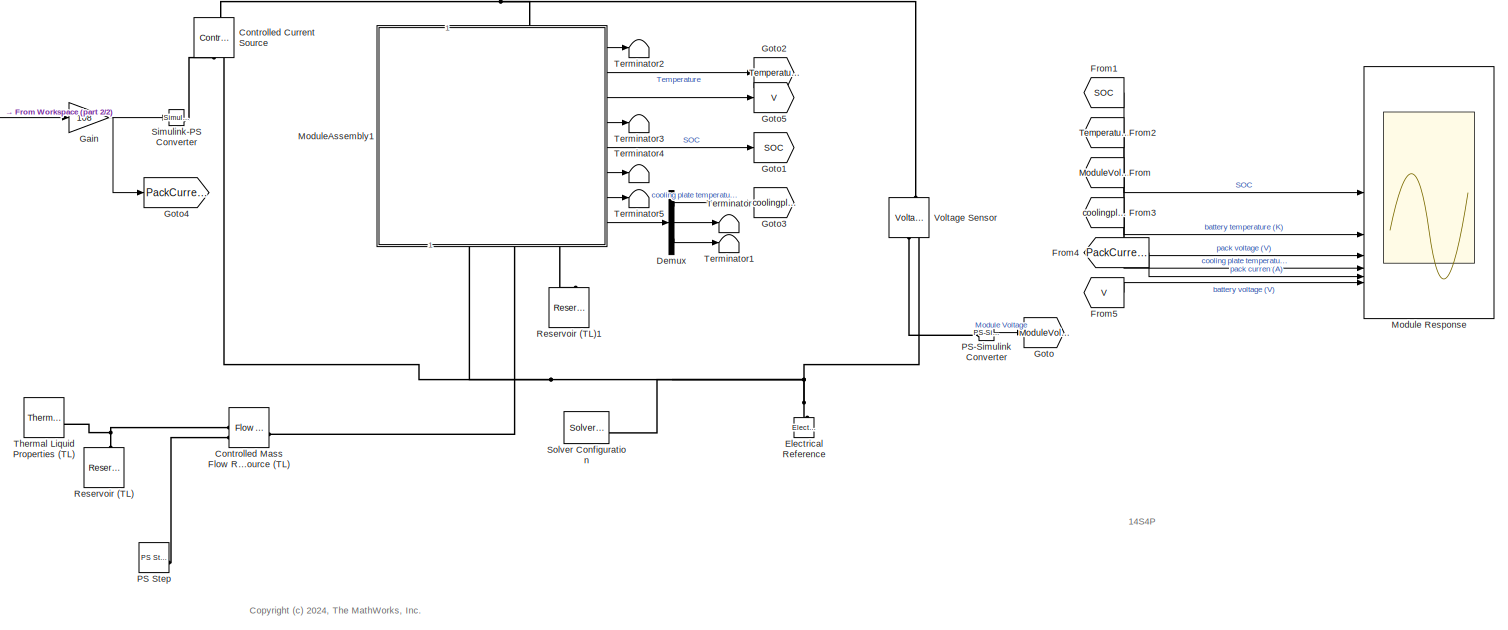
[diagram: root canvas - part 1/2, most of the canvas]
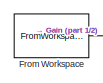
[diagram: root canvas - part 2/2, top left region]
MODEL slx_20feb65389b3
KIND model
CONFIG AbsTol = auto
CONFIG EnableMultiTasking = off
CONFIG FixedStep = auto
CONFIG MaxStep = auto
CONFIG MinStep = auto
CONFIG PostLoadFcn = pouchPackExample_param;\nload Artemis150mphCurrent_TS.mat;
CONFIG RelTol = 1e-3
CONFIG SampleTimeConstraint = Unconstrained
CONFIG SolverName = VariableStepAuto
CONFIG StartTime = 0.0
CONFIG StopTime = 800
BLOCK [Reference] Controlled Current Source  REF=fl_lib/Electrical/Electrical Sources/Controlled Current
Source
  NameLocation = right
  SourceBlock = fl_lib/Electrical/Electrical Sources/Controlled Current\nSource
  SourceType = Controlled Current\nSource
BLOCK [Reference] Controlled Mass Flow Rate Source (TL)  REF=fl_lib/Thermal Liquid/Sources/Flow Rate Source
(TL)
  SourceBlock = fl_lib/Thermal Liquid/Sources/Flow Rate Source\n(TL)
  SourceType = Flow Rate Source\n(TL)
BLOCK [Demux] Demux
  Outputs = [10 1 1]
BLOCK [Reference] Electrical Reference  REF=fl_lib/Electrical/Electrical Elements/Electrical Reference
  NameLocation = right
  SourceBlock = fl_lib/Electrical/Electrical Elements/Electrical Reference
  SourceType = Electrical Reference
BLOCK [From] From
  GotoTag = ModuleVoltage
BLOCK [FromWorkspace] From Workspace
  OutputAfterFinalValue = Setting to zero
  VariableName = battpackcurrent
BLOCK [From] From1
  GotoTag = SOC
BLOCK [From] From2
  GotoTag = Temperature
BLOCK [From] From3
  GotoTag = coolingplatetemperature
BLOCK [From] From4
  GotoTag = PackCurrent
BLOCK [From] From5
  GotoTag = V
BLOCK [Gain] Gain
  Gain = 108
BLOCK [Goto] Goto
  GotoTag = ModuleVoltage
BLOCK [Goto] Goto1
  GotoTag = SOC
BLOCK [Goto] Goto2
  GotoTag = Temperature
BLOCK [Goto] Goto3
  GotoTag = coolingplatetemperature
BLOCK [Goto] Goto4
  GotoTag = PackCurrent
BLOCK [Goto] Goto5
  GotoTag = V
BLOCK [Scope] Module Response
  Floating = off
  NumInputPorts = 6
  ScopeSpecificationString = Simulink.scopes.TimeScopeBlockCfg('CurrentConfiguration', extmgr.ConfigurationSet(extmgr.Configuration('Core','General UI',true),extmgr.Configuration('Core','Source UI',true),extmgr.Configuration('Sources','WiredSimulink',true),extmgr.Configuration('Visuals','Time Domain',true,'SerializedDisplays',{struct('MinYLimReal','0.89071','MaxYLimReal','1.01214','YLabelReal','','MinYLimMag','0.89071','MaxYL...<+5937ch>
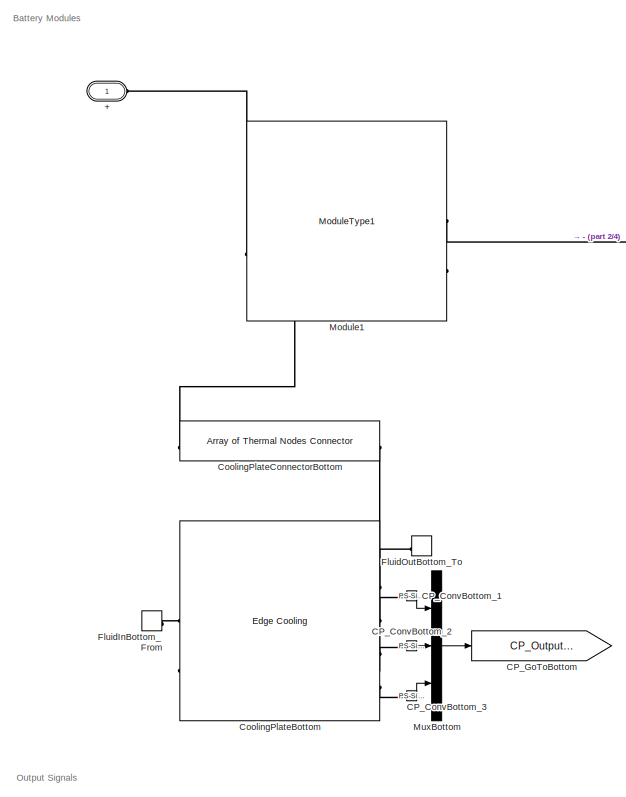
[diagram: ModuleAssembly1 - part 1/4, top left region]
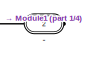
[diagram: ModuleAssembly1 - part 2/4, top right region]
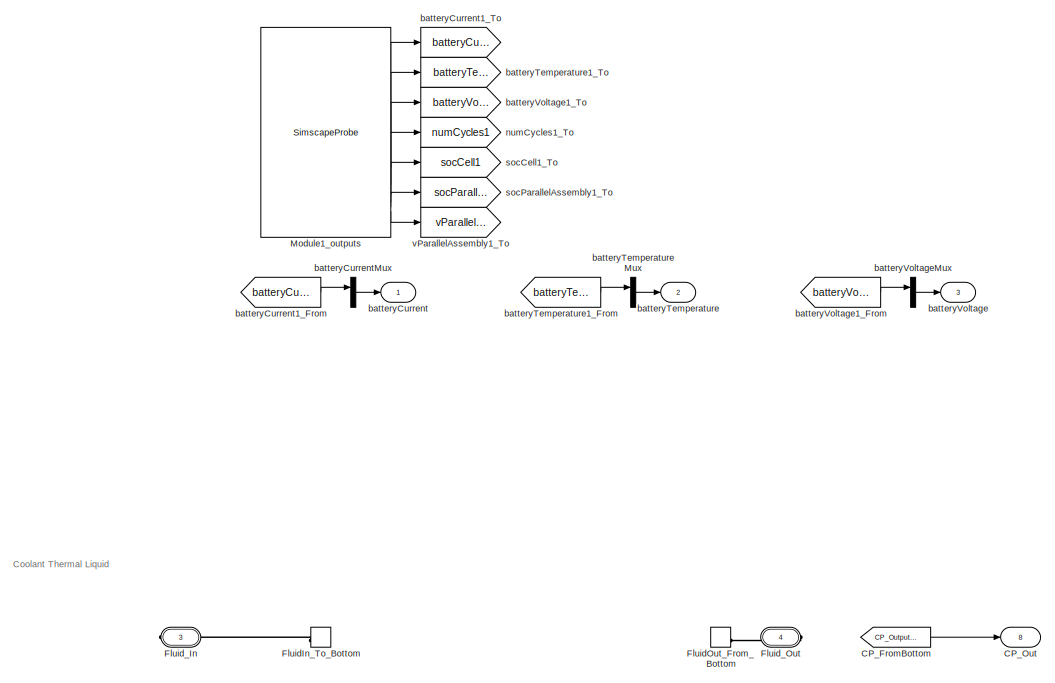
[diagram: ModuleAssembly1 - part 3/4, bottom left region]
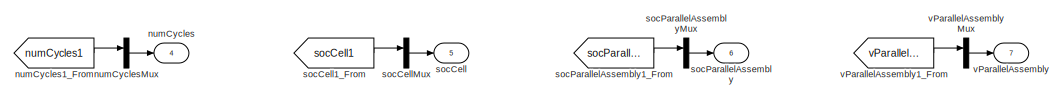
[diagram: ModuleAssembly1 - part 4/4, bottom center region]
BLOCK [SubSystem] ModuleAssembly1
  CopyFcn = battery_builder_rtmsupport('copyfcn',gcbh);
  LoadFcn = battery_builder_rtmsupport('loadfcn',gcbh);
  PortSchema = {"entries":[{"content":{"sides":[{"content":{"connectorIds":["LConn1"]},"type":"ConnectorPlacement.EquallySpacedRectSide","uuid":"a5a584e8-f613-435c-beac-db0de62ed6e0"},{"content":{"connectorIds":["RConn1","RConn2","RConn3"],"side":"RIGHT"},"type":"ConnectorPlacement.EquallySpacedRectSide","uuid":"d51acd9b-f0fc-42a2-9d6d-d5cd10e7587e"},{"content":{"side":"TOP"},"type":"ConnectorPlacement.EquallySp...<+444ch>
  PreCopyFcn = battery_builder_rtmsupport('precopyfcn',gcbh);
  PreDeleteFcn = battery_builder_rtmsupport('predeletefcn',gcbh);
BLOCK [PMIOPort] ModuleAssembly1/+
  Side = Left
BLOCK [PMIOPort] ModuleAssembly1/-
  Port = 2
  Side = Right
BLOCK [Reference] ModuleAssembly1/CP_ConvBottom_1  REF=nesl_utility/PS-Simulink
Converter
  SourceBlock = nesl_utility/PS-Simulink\nConverter
  SourceType = PS-Simulink\nConverter
BLOCK [Reference] ModuleAssembly1/CP_ConvBottom_2  REF=nesl_utility/PS-Simulink
Converter
  SourceBlock = nesl_utility/PS-Simulink\nConverter
  SourceType = PS-Simulink\nConverter
BLOCK [Reference] ModuleAssembly1/CP_ConvBottom_3  REF=nesl_utility/PS-Simulink
Converter
  SourceBlock = nesl_utility/PS-Simulink\nConverter
  SourceType = PS-Simulink\nConverter
BLOCK [From] ModuleAssembly1/CP_FromBottom
  GotoTag = CP_OutputsBottom
BLOCK [Goto] ModuleAssembly1/CP_GoToBottom
  GotoTag = CP_OutputsBottom
BLOCK [Outport] ModuleAssembly1/CP_Out
  Port = 8
BLOCK [Reference] ModuleAssembly1/CoolingPlateBottom  REF=batt_lib/Thermal/Edge Cooling
  SourceBlock = batt_lib/Thermal/Edge Cooling
  SourceType = Edge Cooling
BLOCK [Reference] ModuleAssembly1/CoolingPlateConnectorBottom  REF=batt_lib/Thermal/Array of Thermal
Nodes Connector
  SourceBlock = batt_lib/Thermal/Array of Thermal\nNodes Connector
  SourceType = Array of Thermal\nNodes Connector
BLOCK [ConnectionLabel] ModuleAssembly1/FluidInBottom_From
  Label = FluidIn_To_Bottom
BLOCK [ConnectionLabel] ModuleAssembly1/FluidIn_To_Bottom
  Label = FluidIn_To_Bottom
BLOCK [ConnectionLabel] ModuleAssembly1/FluidOutBottom_To
  Label = FluidOut_From_Bottom
BLOCK [ConnectionLabel] ModuleAssembly1/FluidOut_From_Bottom
  Label = FluidOut_From_Bottom
BLOCK [PMIOPort] ModuleAssembly1/Fluid_In
  ConnectionType = Connection: foundation.thermal_liquid.thermal_liquid
  Port = 3
  Side = Right
BLOCK [PMIOPort] ModuleAssembly1/Fluid_Out
  ConnectionType = Connection: foundation.thermal_liquid.thermal_liquid
  Port = 4
  Side = Right
BLOCK [Reference] ModuleAssembly1/Module1  REF=pouchPackExample_lib/Modules/ModuleType1
  SourceBlock = pouchPackExample_lib/Modules/ModuleType1
  SourceType = ModuleType1
BLOCK [SimscapeProbe] ModuleAssembly1/Module1_outputs
  BoundBlock = 471
  Variables = {batteryCurrent, batteryTemperature, batteryVoltage, numCycles, socCell, socParallelAssembly, vParallelAssembly}
BLOCK [Mux] ModuleAssembly1/MuxBottom
  DisplayOption = bar
  Inputs = 3
BLOCK [Outport] ModuleAssembly1/batteryCurrent
BLOCK [From] ModuleAssembly1/batteryCurrent1_From
  GotoTag = batteryCurrent1
BLOCK [Goto] ModuleAssembly1/batteryCurrent1_To
  GotoTag = batteryCurrent1
BLOCK [Mux] ModuleAssembly1/batteryCurrentMux
  DisplayOption = bar
  Inputs = 1
BLOCK [Outport] ModuleAssembly1/batteryTemperature
  Port = 2
BLOCK [From] ModuleAssembly1/batteryTemperature1_From
  GotoTag = batteryTemperature1
BLOCK [Goto] ModuleAssembly1/batteryTemperature1_To
  GotoTag = batteryTemperature1
BLOCK [Mux] ModuleAssembly1/batteryTemperatureMux
  DisplayOption = bar
  Inputs = 1
BLOCK [Outport] ModuleAssembly1/batteryVoltage
  Port = 3
BLOCK [From] ModuleAssembly1/batteryVoltage1_From
  GotoTag = batteryVoltage1
BLOCK [Goto] ModuleAssembly1/batteryVoltage1_To
  GotoTag = batteryVoltage1
BLOCK [Mux] ModuleAssembly1/batteryVoltageMux
  DisplayOption = bar
  Inputs = 1
BLOCK [Outport] ModuleAssembly1/numCycles
  Port = 4
BLOCK [From] ModuleAssembly1/numCycles1_From
  GotoTag = numCycles1
BLOCK [Goto] ModuleAssembly1/numCycles1_To
  GotoTag = numCycles1
BLOCK [Mux] ModuleAssembly1/numCyclesMux
  DisplayOption = bar
  Inputs = 1
BLOCK [Outport] ModuleAssembly1/socCell
  Port = 5
BLOCK [From] ModuleAssembly1/socCell1_From
  GotoTag = socCell1
BLOCK [Goto] ModuleAssembly1/socCell1_To
  GotoTag = socCell1
BLOCK [Mux] ModuleAssembly1/socCellMux
  DisplayOption = bar
  Inputs = 1
BLOCK [Outport] ModuleAssembly1/socParallelAssembly
  Port = 6
BLOCK [From] ModuleAssembly1/socParallelAssembly1_From
  GotoTag = socParallelAssembly1
BLOCK [Goto] ModuleAssembly1/socParallelAssembly1_To
  GotoTag = socParallelAssembly1
BLOCK [Mux] ModuleAssembly1/socParallelAssemblyMux
  DisplayOption = bar
  Inputs = 1
BLOCK [Outport] ModuleAssembly1/vParallelAssembly
  Port = 7
BLOCK [From] ModuleAssembly1/vParallelAssembly1_From
  GotoTag = vParallelAssembly1
BLOCK [Goto] ModuleAssembly1/vParallelAssembly1_To
  GotoTag = vParallelAssembly1
BLOCK [Mux] ModuleAssembly1/vParallelAssemblyMux
  DisplayOption = bar
  Inputs = 1
BLOCK [Reference] PS Step  REF=fl_lib/Physical Signals/Sources/PS Step
  SourceBlock = fl_lib/Physical Signals/Sources/PS Step
  SourceType = PS Step
BLOCK [Reference] PS-Simulink Converter  REF=nesl_utility/PS-Simulink
Converter
  SourceBlock = nesl_utility/PS-Simulink\nConverter
  SourceType = PS-Simulink\nConverter
BLOCK [Reference] Reservoir (TL)  REF=fl_lib/Thermal Liquid/Elements/Reservoir (TL)
  NameLocation = right
  SourceBlock = fl_lib/Thermal Liquid/Elements/Reservoir (TL)
  SourceType = Reservoir (TL)
BLOCK [Reference] Reservoir (TL)1  REF=fl_lib/Thermal Liquid/Elements/Reservoir (TL)
  NameLocation = right
  SourceBlock = fl_lib/Thermal Liquid/Elements/Reservoir (TL)
  SourceType = Reservoir (TL)
BLOCK [Reference] Simulink-PS Converter  REF=nesl_utility/Simulink-PS
Converter
  SourceBlock = nesl_utility/Simulink-PS\nConverter
  SourceType = Simulink-PS\nConverter
BLOCK [Reference] Solver Configuration  REF=nesl_utility/Solver
Configuration
  SourceBlock = nesl_utility/Solver\nConfiguration
  SourceType = Solver\nConfiguration
BLOCK [Terminator] Terminator
BLOCK [Terminator] Terminator1
BLOCK [Terminator] Terminator2
BLOCK [Terminator] Terminator3
BLOCK [Terminator] Terminator4
BLOCK [Terminator] Terminator5
BLOCK [Reference] Thermal Liquid Properties (TL)  REF=SimscapeFluids_lib/Thermal Liquid/Utilities/Thermal Liquid
Properties (TL)
  SourceBlock = SimscapeFluids_lib/Thermal Liquid/Utilities/Thermal Liquid\nProperties (TL)
  SourceType = Thermal Liquid\nProperties (TL)
BLOCK [Reference] Voltage Sensor  REF=fl_lib/Electrical/Electrical Sensors/Voltage Sensor
  NameLocation = right
  SourceBlock = fl_lib/Electrical/Electrical Sensors/Voltage Sensor
  SourceType = Voltage Sensor
ANNOTATION (root): <copyright redacted>
ANNOTATION (root): 14S4P
ANNOTATION ModuleAssembly1: Battery Modules
ANNOTATION ModuleAssembly1: Coolant Thermal Liquid
ANNOTATION ModuleAssembly1: Output Signals
LINE Demux:1 -> Goto3:1
LINE Demux:2 -> Terminator:1
LINE Demux:3 -> Terminator1:1
LINE From Workspace:1 -> Gain:1
LINE From1:1 -> Module Response:1
LINE From2:1 -> Module Response:2
LINE From3:1 -> Module Response:4
LINE From4:1 -> Module Response:5
LINE From5:1 -> Module Response:6
LINE From:1 -> Module Response:3
NET Gain:1 -> Goto4:1, Simulink-PS Converter:1
LINE ModuleAssembly1/CP_ConvBottom_1:1 -> ModuleAssembly1/MuxBottom:1
LINE ModuleAssembly1/CP_ConvBottom_2:1 -> ModuleAssembly1/MuxBottom:2
LINE ModuleAssembly1/CP_ConvBottom_3:1 -> ModuleAssembly1/MuxBottom:3
LINE ModuleAssembly1/CP_FromBottom:1 -> ModuleAssembly1/CP_Out:1
LINE ModuleAssembly1/Module1_outputs:1 -> ModuleAssembly1/batteryCurrent1_To:1
LINE ModuleAssembly1/Module1_outputs:2 -> ModuleAssembly1/batteryTemperature1_To:1
LINE ModuleAssembly1/Module1_outputs:3 -> ModuleAssembly1/batteryVoltage1_To:1
LINE ModuleAssembly1/Module1_outputs:4 -> ModuleAssembly1/numCycles1_To:1
LINE ModuleAssembly1/Module1_outputs:5 -> ModuleAssembly1/socCell1_To:1
LINE ModuleAssembly1/Module1_outputs:6 -> ModuleAssembly1/socParallelAssembly1_To:1
LINE ModuleAssembly1/Module1_outputs:7 -> ModuleAssembly1/vParallelAssembly1_To:1
LINE ModuleAssembly1/MuxBottom:1 -> ModuleAssembly1/CP_GoToBottom:1
LINE ModuleAssembly1/batteryCurrent1_From:1 -> ModuleAssembly1/batteryCurrentMux:1
LINE ModuleAssembly1/batteryCurrentMux:1 -> ModuleAssembly1/batteryCurrent:1
LINE ModuleAssembly1/batteryTemperature1_From:1 -> ModuleAssembly1/batteryTemperatureMux:1
LINE ModuleAssembly1/batteryTemperatureMux:1 -> ModuleAssembly1/batteryTemperature:1
LINE ModuleAssembly1/batteryVoltage1_From:1 -> ModuleAssembly1/batteryVoltageMux:1
LINE ModuleAssembly1/batteryVoltageMux:1 -> ModuleAssembly1/batteryVoltage:1
LINE ModuleAssembly1/numCycles1_From:1 -> ModuleAssembly1/numCyclesMux:1
LINE ModuleAssembly1/numCyclesMux:1 -> ModuleAssembly1/numCycles:1
LINE ModuleAssembly1/socCell1_From:1 -> ModuleAssembly1/socCellMux:1
LINE ModuleAssembly1/socCellMux:1 -> ModuleAssembly1/socCell:1
LINE ModuleAssembly1/socParallelAssembly1_From:1 -> ModuleAssembly1/socParallelAssemblyMux:1
LINE ModuleAssembly1/socParallelAssemblyMux:1 -> ModuleAssembly1/socParallelAssembly:1
LINE ModuleAssembly1/vParallelAssembly1_From:1 -> ModuleAssembly1/vParallelAssemblyMux:1
LINE ModuleAssembly1/vParallelAssemblyMux:1 -> ModuleAssembly1/vParallelAssembly:1
LINE ModuleAssembly1:1 -> Terminator2:1
LINE ModuleAssembly1:2 -> Goto2:1
LINE ModuleAssembly1:3 -> Goto5:1
LINE ModuleAssembly1:4 -> Terminator3:1
LINE ModuleAssembly1:5 -> Goto1:1
LINE ModuleAssembly1:6 -> Terminator4:1
LINE ModuleAssembly1:7 -> Terminator5:1
LINE ModuleAssembly1:8 -> Demux:1
LINE PS-Simulink Converter:1 -> Goto:1
PNET net1: Controlled Current Source:LConn1 -- ModuleAssembly1:LConn1 -- Voltage Sensor:LConn1
PLINE Controlled Current Source:RConn1 -- Simulink-PS Converter:RConn1
PNET net2: Controlled Current Source:RConn2 -- Electrical Reference:LConn1 -- ModuleAssembly1:RConn1 -- Solver Configuration:RConn1 -- Voltage Sensor:RConn2
PNET net3: Controlled Mass Flow Rate Source (TL):LConn1 -- Reservoir (TL):LConn1 -- Thermal Liquid Properties (TL):RConn1
PLINE Controlled Mass Flow Rate Source (TL):LConn2 -- PS Step:RConn1
PLINE Controlled Mass Flow Rate Source (TL):RConn1 -- ModuleAssembly1:RConn2
PLINE ModuleAssembly1/+:RConn1 -- ModuleAssembly1/Module1:LConn1
PLINE ModuleAssembly1/-:RConn1 -- ModuleAssembly1/Module1:RConn1
PLINE ModuleAssembly1/CP_ConvBottom_1:LConn1 -- ModuleAssembly1/CoolingPlateBottom:RConn2
PLINE ModuleAssembly1/CP_ConvBottom_2:LConn1 -- ModuleAssembly1/CoolingPlateBottom:RConn3
PLINE ModuleAssembly1/CP_ConvBottom_3:LConn1 -- ModuleAssembly1/CoolingPlateBottom:RConn4
PLINE ModuleAssembly1/CoolingPlateBottom:LConn1 -- ModuleAssembly1/FluidInBottom_From:LConn1
PLINE ModuleAssembly1/CoolingPlateBottom:LConn2 -- ModuleAssembly1/CoolingPlateConnectorBottom:RConn1
PLINE ModuleAssembly1/CoolingPlateBottom:RConn1 -- ModuleAssembly1/FluidOutBottom_To:LConn1
PLINE ModuleAssembly1/CoolingPlateConnectorBottom:LConn1 -- ModuleAssembly1/Module1:RConn2
PLINE ModuleAssembly1/FluidIn_To_Bottom:LConn1 -- ModuleAssembly1/Fluid_In:RConn1
PLINE ModuleAssembly1/FluidOut_From_Bottom:LConn1 -- ModuleAssembly1/Fluid_Out:RConn1
PLINE ModuleAssembly1:RConn3 -- Reservoir (TL)1:LConn1
PLINE PS-Simulink Converter:LConn1 -- Voltage Sensor:RConn1
note: NET lines group one-source signal fan-out (src -> all destinations, sorted); 1:1 wires keep LINE; PNET lines group multi-terminal physical nets as a canonical sorted terminal list (undirected conserving connections); 2-terminal nets keep the pairwise PLINE form
